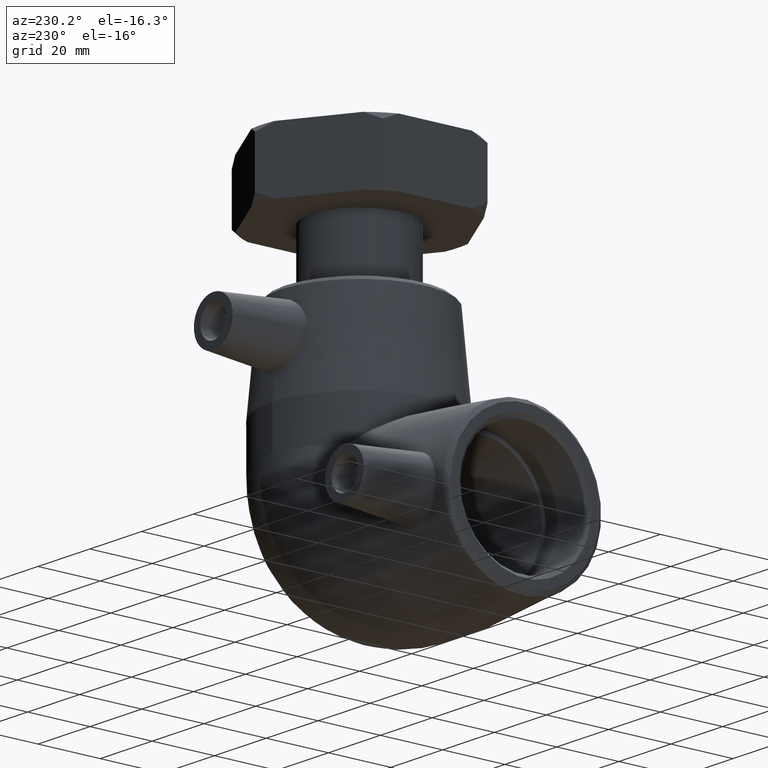
[diagram: clean part render]
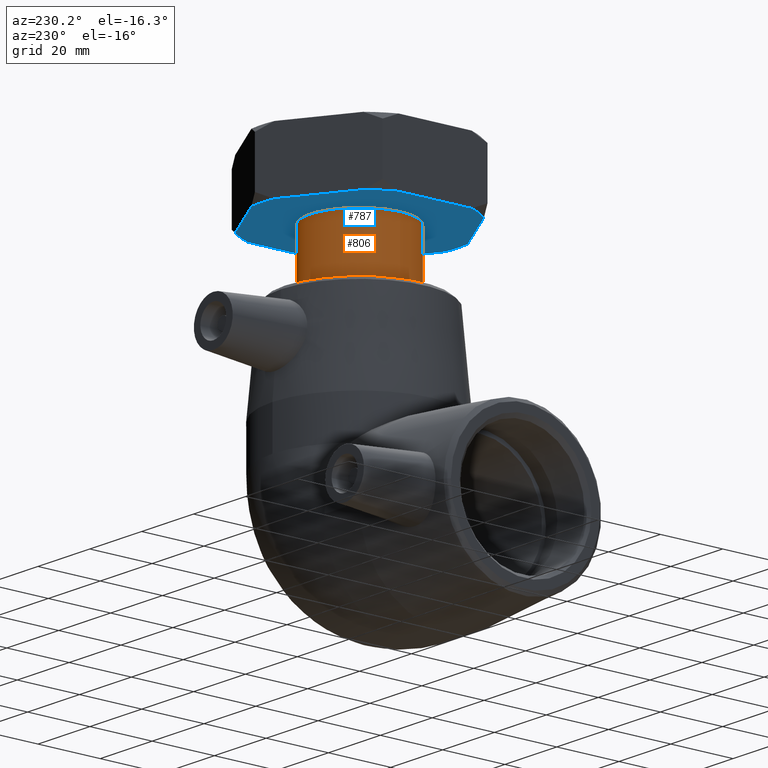
[diagram: same view with the hole feature highlighted: cylindrical wall and planar end face, labeled with their STEP entity ids]
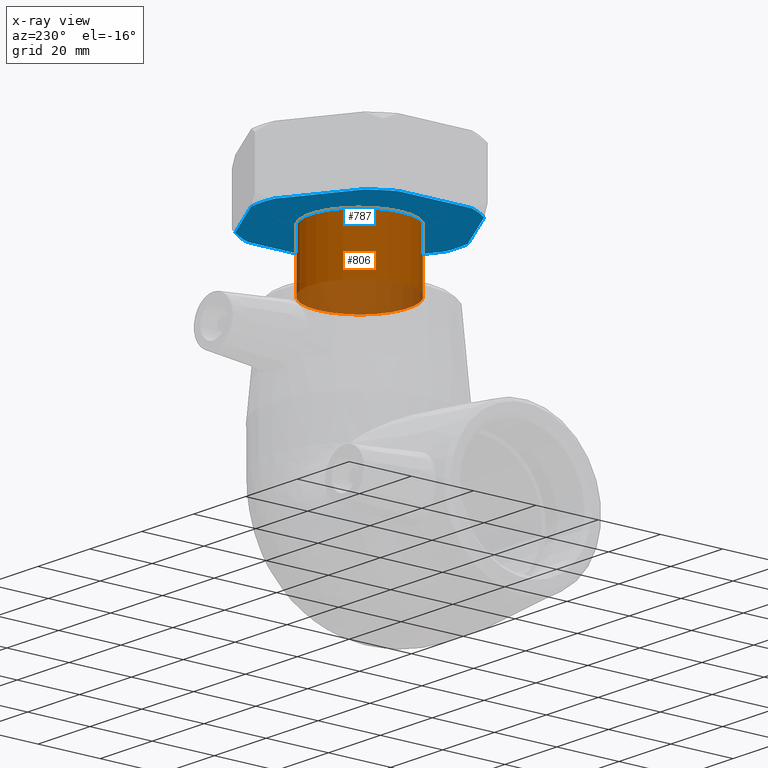
[diagram: x-ray of the same camera — body ghosted, the hole faces saturated]
A machine part, auxiliary view. The highlighted faces form one hole feature of diameter 31.3916 mm: the cylindrical wall (entity #806, orange) and its adjacent planar end face (entity #787, blue) — they share a circular edge in the B-rep.
The next image is the same camera in x-ray (body ghosted, the hole faces saturated) — the bore reads through the body.
Wall:
#86=CYLINDRICAL_SURFACE('',#907,15.69575);
#141=FACE_BOUND('',#285,.T.);
#199=FACE_OUTER_BOUND('',#284,.T.);
#284=EDGE_LOOP('',(#702));
#285=EDGE_LOOP('',(#703));
#338=CIRCLE('',#868,15.69575);
#343=CIRCLE('',#877,15.69575);
#414=VERTEX_POINT('',#1357);
#419=VERTEX_POINT('',#1371);
#510=EDGE_CURVE('',#414,#414,#338,.T.);
#515=EDGE_CURVE('',#419,#419,#343,.T.);
#702=ORIENTED_EDGE('',*,*,#515,.F.);
#703=ORIENTED_EDGE('',*,*,#510,.T.);
#806=ADVANCED_FACE('',(#199,#141),#86,.T.);
#868=AXIS2_PLACEMENT_3D('',#1358,#1038,#1039);
#877=AXIS2_PLACEMENT_3D('',#1372,#1056,#1057);
#907=AXIS2_PLACEMENT_3D('',#1487,#1116,#1117);
#1038=DIRECTION('center_axis',(-2.08166817117217E-16,0.,-1.));
#1039=DIRECTION('ref_axis',(1.,0.,-2.08166817117217E-16));
#1056=DIRECTION('center_axis',(-2.08166817117217E-16,0.,-1.));
#1057=DIRECTION('ref_axis',(1.,0.,-2.08166817117217E-16));
#1116=DIRECTION('center_axis',(-2.08166817117217E-16,0.,-1.));
#1117=DIRECTION('ref_axis',(-1.,0.,2.521641858989E-16));
#1357=CARTESIAN_POINT('',(-15.69575,0.,84.));
#1358=CARTESIAN_POINT('Origin',(1.74860126378462E-14,0.,84.));
#1371=CARTESIAN_POINT('',(-15.69575,0.,65.6));
#1372=CARTESIAN_POINT('Origin',(1.36557432028894E-14,0.,65.6));
#1487=CARTESIAN_POINT('Origin',(1.55708779203678E-14,0.,74.8));
End face:
#21=LINE('',#1219,#39);
#25=LINE('',#1243,#43);
#28=LINE('',#1265,#46);
#30=LINE('',#1282,#48);
#32=LINE('',#1301,#50);
#35=LINE('',#1323,#53);
#39=VECTOR('',#962,23.4097772696048);
#43=VECTOR('',#968,23.4097772696046);
#46=VECTOR('',#973,23.4097772696047);
#48=VECTOR('',#977,23.4097772696046);
#50=VECTOR('',#981,23.4097772696048);
#53=VECTOR('',#986,23.4097772696048);
#101=PLANE('',#867);
#120=FACE_BOUND('',#245,.T.);
#180=FACE_OUTER_BOUND('',#244,.T.);
#244=EDGE_LOOP('',(#640,#641,#642,#643,#644,#645,#646,#647,#648,#649,#650,
#651));
#245=EDGE_LOOP('',(#652));
#332=CIRCLE('',#856,31.3915);
#333=CIRCLE('',#858,31.3915);
#334=CIRCLE('',#860,31.3915);
#335=CIRCLE('',#862,31.3915);
#336=CIRCLE('',#864,31.3915);
#337=CIRCLE('',#866,31.3915);
#338=CIRCLE('',#868,15.69575);
#383=VERTEX_POINT('',#1214);
#384=VERTEX_POINT('',#1218);
#390=VERTEX_POINT('',#1238);
#391=VERTEX_POINT('',#1242);
#396=VERTEX_POINT('',#1260);
#397=VERTEX_POINT('',#1264);
#401=VERTEX_POINT('',#1277);
#402=VERTEX_POINT('',#1281);
#405=VERTEX_POINT('',#1296);
#406=VERTEX_POINT('',#1300);
#411=VERTEX_POINT('',#1318);
#412=VERTEX_POINT('',#1322);
#414=VERTEX_POINT('',#1357);
#461=EDGE_CURVE('',#384,#383,#21,.T.);
#469=EDGE_CURVE('',#391,#390,#25,.T.);
#476=EDGE_CURVE('',#397,#396,#28,.T.);
#481=EDGE_CURVE('',#402,#401,#30,.T.);
#487=EDGE_CURVE('',#406,#405,#32,.T.);
#494=EDGE_CURVE('',#412,#411,#35,.T.);
#504=EDGE_CURVE('',#397,#390,#332,.T.);
#505=EDGE_CURVE('',#402,#396,#333,.T.);
#506=EDGE_CURVE('',#391,#383,#334,.T.);
#507=EDGE_CURVE('',#384,#405,#335,.T.);
#508=EDGE_CURVE('',#412,#401,#336,.T.);
#509=EDGE_CURVE('',#406,#411,#337,.T.);
#510=EDGE_CURVE('',#414,#414,#338,.T.);
#640=ORIENTED_EDGE('',*,*,#494,.T.);
#641=ORIENTED_EDGE('',*,*,#509,.F.);
#642=ORIENTED_EDGE('',*,*,#487,.T.);
#643=ORIENTED_EDGE('',*,*,#507,.F.);
#644=ORIENTED_EDGE('',*,*,#461,.T.);
#645=ORIENTED_EDGE('',*,*,#506,.F.);
#646=ORIENTED_EDGE('',*,*,#469,.T.);
#647=ORIENTED_EDGE('',*,*,#504,.F.);
#648=ORIENTED_EDGE('',*,*,#476,.T.);
#649=ORIENTED_EDGE('',*,*,#505,.F.);
#650=ORIENTED_EDGE('',*,*,#481,.T.);
#651=ORIENTED_EDGE('',*,*,#508,.F.);
#652=ORIENTED_EDGE('',*,*,#510,.F.);
#787=ADVANCED_FACE('',(#180,#120),#101,.T.);
#856=AXIS2_PLACEMENT_3D('',#1345,#1014,#1015);
#858=AXIS2_PLACEMENT_3D('',#1347,#1018,#1019);
#860=AXIS2_PLACEMENT_3D('',#1349,#1022,#1023);
#862=AXIS2_PLACEMENT_3D('',#1351,#1026,#1027);
#864=AXIS2_PLACEMENT_3D('',#1353,#1030,#1031);
#866=AXIS2_PLACEMENT_3D('',#1355,#1034,#1035);
#867=AXIS2_PLACEMENT_3D('',#1356,#1036,#1037);
#868=AXIS2_PLACEMENT_3D('',#1358,#1038,#1039);
#962=DIRECTION('',(-0.866025403784438,-0.500000000000001,1.80277751848459E-16));
#968=DIRECTION('',(-0.866025403784439,0.499999999999999,1.80277751848459E-16));
#973=DIRECTION('',(-1.5844413775451E-15,1.,3.29828118472382E-31));
#977=DIRECTION('',(0.866025403784438,0.500000000000002,-1.80277751848459E-16));
#981=DIRECTION('',(1.05629425169673E-15,-1.,-2.19885412314921E-31));
#986=DIRECTION('',(0.866025403784439,-0.499999999999999,-1.80277751848459E-16));
#1014=DIRECTION('center_axis',(2.08166817117217E-16,0.,1.));
#1015=DIRECTION('ref_axis',(1.,0.,-2.08166817117217E-16));
#1018=DIRECTION('center_axis',(2.08166817117217E-16,0.,1.));
#1019=DIRECTION('ref_axis',(1.,0.,-2.08166817117217E-16));
#1022=DIRECTION('center_axis',(2.08166817117217E-16,0.,1.));
#1023=DIRECTION('ref_axis',(1.,0.,-2.08166817117217E-16));
#1026=DIRECTION('center_axis',(2.08166817117217E-16,0.,1.));
#1027=DIRECTION('ref_axis',(1.,0.,-2.08166817117217E-16));
#1030=DIRECTION('center_axis',(2.08166817117217E-16,0.,1.));
#1031=DIRECTION('ref_axis',(1.,0.,-2.08166817117217E-16));
#1034=DIRECTION('center_axis',(2.08166817117217E-16,0.,1.));
#1035=DIRECTION('ref_axis',(1.,0.,-2.08166817117217E-16));
#1036=DIRECTION('center_axis',(-2.08166817117217E-16,0.,-1.));
#1037=DIRECTION('ref_axis',(-1.,0.,0.));
#1038=DIRECTION('center_axis',(-2.08166817117217E-16,0.,-1.));
#1039=DIRECTION('ref_axis',(1.,0.,-2.08166817117217E-16));
#1214=CARTESIAN_POINT('',(4.42711005606088,-31.0777568174012,84.));
#1218=CARTESIAN_POINT('',(24.7005718684741,-19.3728681825988,84.));
#1219=CARTESIAN_POINT('',(15.9598551934012,-24.4193233078624,84.));
#1238=CARTESIAN_POINT('',(-24.700571868474,-19.3728681825989,84.));
#1242=CARTESIAN_POINT('',(-4.42711005606082,-31.0777568174012,84.));
#1243=CARTESIAN_POINT('',(-13.1678267311337,-26.0313016921376,84.));
#1260=CARTESIAN_POINT('',(-29.1276819245349,11.7048886348023,84.));
#1264=CARTESIAN_POINT('',(-29.1276819245348,-11.7048886348024,84.));
#1265=CARTESIAN_POINT('',(-29.1276819245348,-8.40843750000004,84.));
#1277=CARTESIAN_POINT('',(-4.42711005606093,31.0777568174012,84.));
#1281=CARTESIAN_POINT('',(-24.700571868474,19.3728681825988,84.));
#1282=CARTESIAN_POINT('',(-27.7316676934012,17.6228641921376,84.));
#1296=CARTESIAN_POINT('',(29.1276819245349,-11.7048886348023,84.));
#1300=CARTESIAN_POINT('',(29.1276819245349,11.7048886348024,84.));
#1301=CARTESIAN_POINT('',(29.1276819245349,8.40843750000004,84.));
#1318=CARTESIAN_POINT('',(24.700571868474,19.3728681825988,84.));
#1322=CARTESIAN_POINT('',(4.42711005606079,31.0777568174012,84.));
#1323=CARTESIAN_POINT('',(1.39601423113368,32.8277608078624,84.));
#1345=CARTESIAN_POINT('Origin',(1.74860126378462E-14,0.,84.));
#1347=CARTESIAN_POINT('Origin',(1.74860126378462E-14,0.,84.));
#1349=CARTESIAN_POINT('Origin',(1.74860126378462E-14,0.,84.));
#1351=CARTESIAN_POINT('Origin',(1.74860126378462E-14,0.,84.));
#1353=CARTESIAN_POINT('Origin',(1.74860126378462E-14,0.,84.));
#1355=CARTESIAN_POINT('Origin',(1.74860126378462E-14,0.,84.));
#1356=CARTESIAN_POINT('Origin',(-15.69575,0.,84.));
#1357=CARTESIAN_POINT('',(-15.69575,0.,84.));
#1358=CARTESIAN_POINT('Origin',(1.74860126378462E-14,0.,84.));